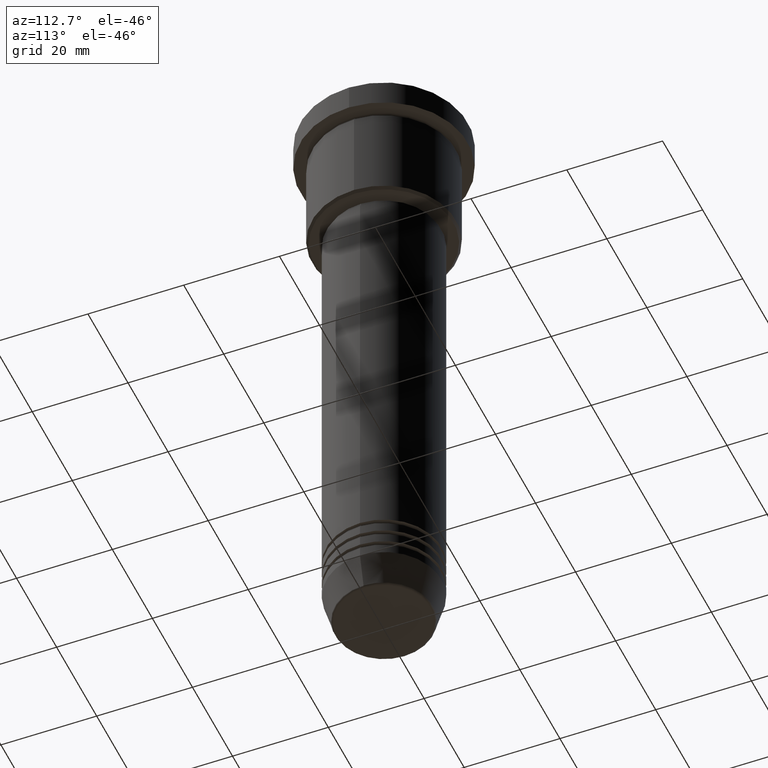
[diagram: clean part render]
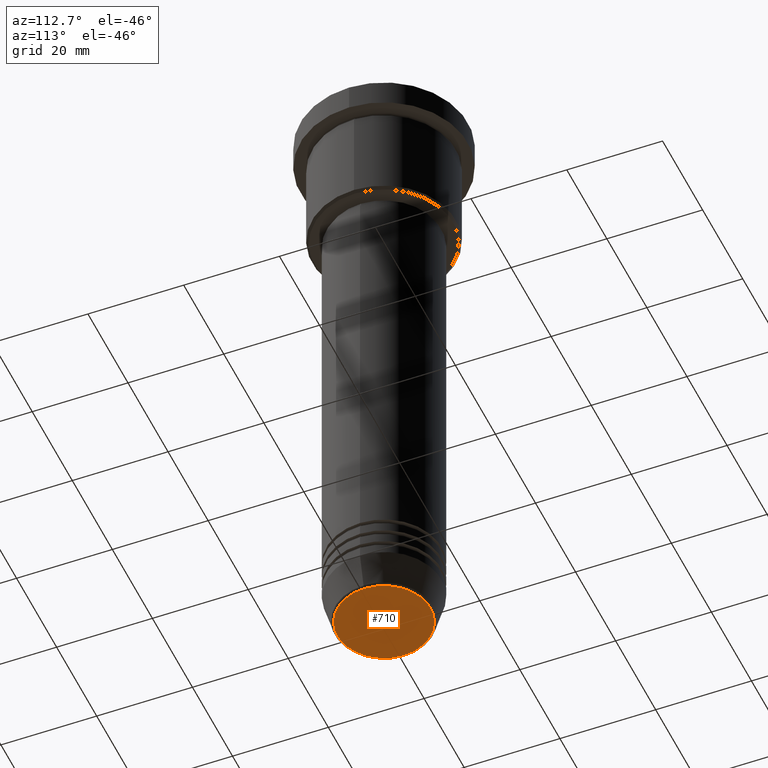
[diagram: same view with one face highlighted and labeled with its STEP entity id]
A machine part, auxiliary view. The second image highlights one B-rep face of the part: STEP entity #710.
In plain terms, the highlighted planar face has unit normal (0, -0, 1).
Its self-contained STEP definition (entity closure, byte-faithful):
#158 = CIRCLE ( 'NONE', #611, 9.740692158992654726 ) ;
#198 = AXIS2_PLACEMENT_3D ( 'NONE', #451, #977, #446 ) ;
#253 = CARTESIAN_POINT ( 'NONE',  ( 0.000000000000000000, 0.000000000000000000, -132.0000000000000000 ) ) ;
#259 = FACE_OUTER_BOUND ( 'NONE', #647, .T. ) ;
#322 = ORIENTED_EDGE ( 'NONE', *, *, #814, .T. ) ;
#446 = DIRECTION ( 'NONE',  ( 1.000000000000000000, 0.000000000000000000, 0.000000000000000000 ) ) ;
#451 = CARTESIAN_POINT ( 'NONE',  ( 0.000000000000000000, 0.000000000000000000, -132.0000000000000000 ) ) ;
#480 = AXIS2_PLACEMENT_3D ( 'NONE', #827, #573, #1021 ) ;
#505 = VERTEX_POINT ( 'NONE', #1061 ) ;
#573 = DIRECTION ( 'NONE',  ( 0.000000000000000000, 0.000000000000000000, -1.000000000000000000 ) ) ;
#599 = CARTESIAN_POINT ( 'NONE',  ( 9.740692158992654726, 0.000000000000000000, -132.0000000000000000 ) ) ;
#611 = AXIS2_PLACEMENT_3D ( 'NONE', #253, #711, #615 ) ;
#615 = DIRECTION ( 'NONE',  ( 1.000000000000000000, 0.000000000000000000, 0.000000000000000000 ) ) ;
#622 = PLANE ( 'NONE',  #198 ) ;
#647 = EDGE_LOOP ( 'NONE', ( #691, #322 ) ) ;
#691 = ORIENTED_EDGE ( 'NONE', *, *, #1032, .T. ) ;
#710 = ADVANCED_FACE ( 'NONE', ( #259 ), #622, .F. ) ;
#711 = DIRECTION ( 'NONE',  ( 0.000000000000000000, 0.000000000000000000, -1.000000000000000000 ) ) ;
#766 = CIRCLE ( 'NONE', #480, 9.740692158992654726 ) ;
#814 = EDGE_CURVE ( 'NONE', #505, #996, #766, .T. ) ;
#827 = CARTESIAN_POINT ( 'NONE',  ( 0.000000000000000000, 0.000000000000000000, -132.0000000000000000 ) ) ;
#977 = DIRECTION ( 'NONE',  ( 0.000000000000000000, -0.000000000000000000, 1.000000000000000000 ) ) ;
#996 = VERTEX_POINT ( 'NONE', #599 ) ;
#1021 = DIRECTION ( 'NONE',  ( 1.000000000000000000, 0.000000000000000000, 0.000000000000000000 ) ) ;
#1032 = EDGE_CURVE ( 'NONE', #996, #505, #158, .T. ) ;
#1061 = CARTESIAN_POINT ( 'NONE',  ( -9.740692158992654726, 1.222463696683474604E-15, -132.0000000000000000 ) ) ;